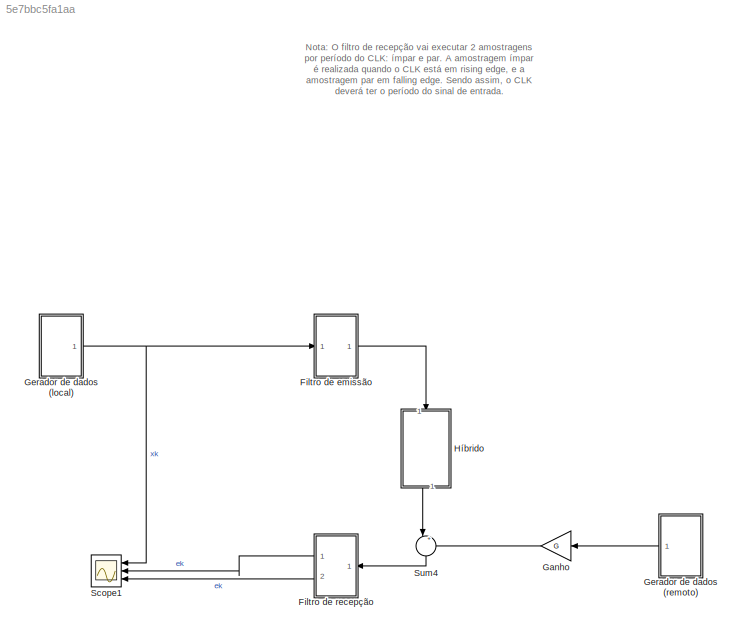
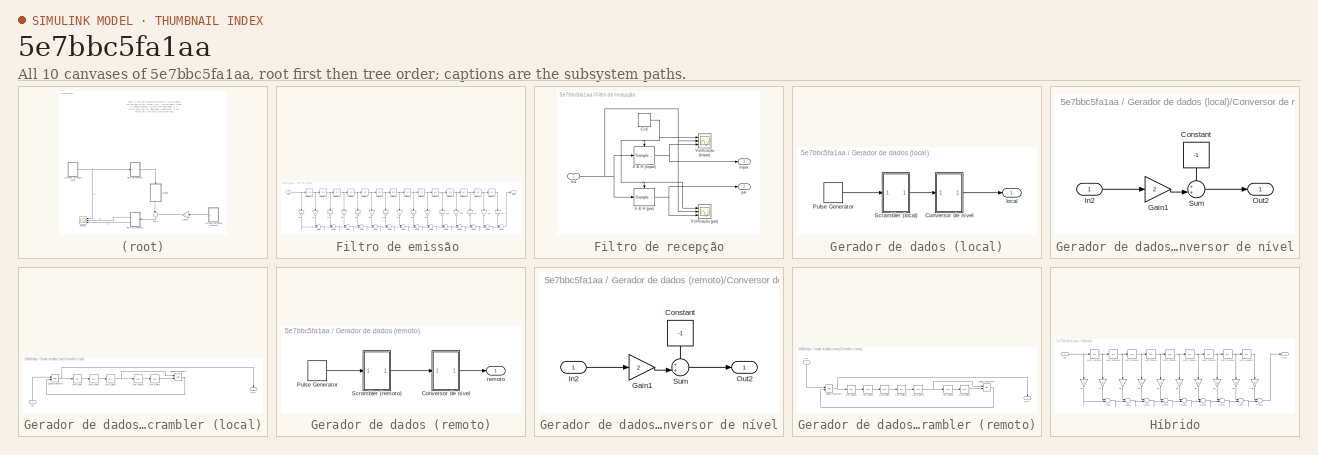
[diagram: thumbnail index - all 10 canvases of the model, root first then tree order]
MODEL slx_5e7bbc5fa1aa
KIND model
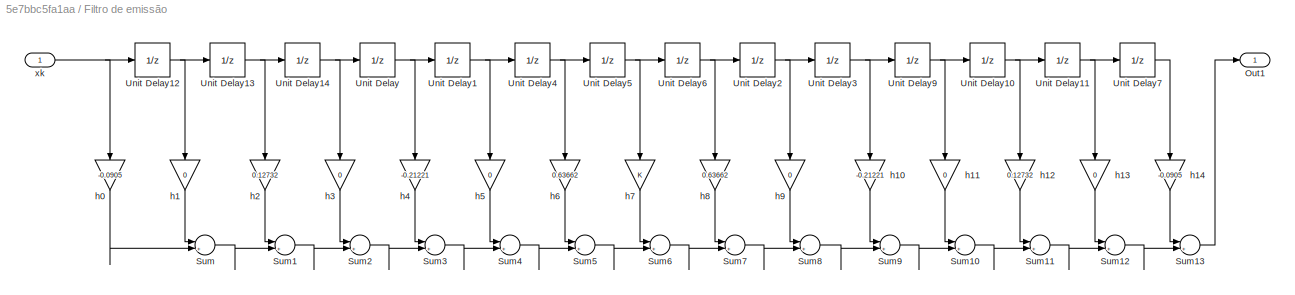
BLOCK [SubSystem] Filtro de emissão 
  FunctionWithSeparateData = off
  MaskHideContents = off
  MinAlgLoopOccurrences = off
  Opaque = off
  Ports = [1, 1]
  PropExecContextOutsideSubsystem = off
  RTWSystemCode = Auto
  RequestExecContextInheritance = off
BLOCK [Outport] Filtro de emissão /Out1
  IconDisplay = Port number
BLOCK [Sum] Filtro de emissão /Sum
  IconShape = round
  InputSameDT = off
  Inputs = |++
  OutDataTypeStr = Inherit: Inherit via internal rule
  Ports = [2, 1]
  SaturateOnIntegerOverflow = off
BLOCK [Sum] Filtro de emissão /Sum1
  IconShape = round
  InputSameDT = off
  Inputs = |++
  OutDataTypeStr = Inherit: Inherit via internal rule
  Ports = [2, 1]
  SaturateOnIntegerOverflow = off
BLOCK [Sum] Filtro de emissão /Sum10
  IconShape = round
  InputSameDT = off
  Inputs = |++
  OutDataTypeStr = Inherit: Inherit via internal rule
  Ports = [2, 1]
  SaturateOnIntegerOverflow = off
BLOCK [Sum] Filtro de emissão /Sum11
  IconShape = round
  InputSameDT = off
  Inputs = |++
  OutDataTypeStr = Inherit: Inherit via internal rule
  Ports = [2, 1]
  SaturateOnIntegerOverflow = off
BLOCK [Sum] Filtro de emissão /Sum12
  IconShape = round
  InputSameDT = off
  Inputs = |++
  OutDataTypeStr = Inherit: Inherit via internal rule
  Ports = [2, 1]
  SaturateOnIntegerOverflow = off
BLOCK [Sum] Filtro de emissão /Sum13
  IconShape = round
  InputSameDT = off
  Inputs = |++
  OutDataTypeStr = Inherit: Inherit via internal rule
  Ports = [2, 1]
  SaturateOnIntegerOverflow = off
BLOCK [Sum] Filtro de emissão /Sum2
  IconShape = round
  InputSameDT = off
  Inputs = |++
  OutDataTypeStr = Inherit: Inherit via internal rule
  Ports = [2, 1]
  SaturateOnIntegerOverflow = off
BLOCK [Sum] Filtro de emissão /Sum3
  IconShape = round
  InputSameDT = off
  Inputs = |++
  OutDataTypeStr = Inherit: Inherit via internal rule
  Ports = [2, 1]
  SaturateOnIntegerOverflow = off
BLOCK [Sum] Filtro de emissão /Sum4
  IconShape = round
  InputSameDT = off
  Inputs = |++
  OutDataTypeStr = Inherit: Inherit via internal rule
  Ports = [2, 1]
  SaturateOnIntegerOverflow = off
BLOCK [Sum] Filtro de emissão /Sum5
  IconShape = round
  InputSameDT = off
  Inputs = |++
  OutDataTypeStr = Inherit: Inherit via internal rule
  Ports = [2, 1]
  SaturateOnIntegerOverflow = off
BLOCK [Sum] Filtro de emissão /Sum6
  IconShape = round
  InputSameDT = off
  Inputs = |++
  OutDataTypeStr = Inherit: Inherit via internal rule
  Ports = [2, 1]
  SaturateOnIntegerOverflow = off
BLOCK [Sum] Filtro de emissão /Sum7
  IconShape = round
  InputSameDT = off
  Inputs = |++
  OutDataTypeStr = Inherit: Inherit via internal rule
  Ports = [2, 1]
  SaturateOnIntegerOverflow = off
BLOCK [Sum] Filtro de emissão /Sum8
  IconShape = round
  InputSameDT = off
  Inputs = |++
  OutDataTypeStr = Inherit: Inherit via internal rule
  Ports = [2, 1]
  SaturateOnIntegerOverflow = off
BLOCK [Sum] Filtro de emissão /Sum9
  IconShape = round
  InputSameDT = off
  Inputs = |++
  OutDataTypeStr = Inherit: Inherit via internal rule
  Ports = [2, 1]
  SaturateOnIntegerOverflow = off
BLOCK [UnitDelay] Filtro de emissão /Unit Delay
  InputProcessing = Elements as channels (sample based)
  SampleTime = -1
BLOCK [UnitDelay] Filtro de emissão /Unit Delay1
  InputProcessing = Elements as channels (sample based)
  SampleTime = -1
BLOCK [UnitDelay] Filtro de emissão /Unit Delay10
  InputProcessing = Elements as channels (sample based)
  SampleTime = -1
BLOCK [UnitDelay] Filtro de emissão /Unit Delay11
  InputProcessing = Elements as channels (sample based)
  SampleTime = -1
BLOCK [UnitDelay] Filtro de emissão /Unit Delay12
  InputProcessing = Elements as channels (sample based)
  SampleTime = -1
BLOCK [UnitDelay] Filtro de emissão /Unit Delay13
  InputProcessing = Elements as channels (sample based)
  SampleTime = -1
BLOCK [UnitDelay] Filtro de emissão /Unit Delay14
  InputProcessing = Elements as channels (sample based)
  SampleTime = -1
BLOCK [UnitDelay] Filtro de emissão /Unit Delay2
  InputProcessing = Elements as channels (sample based)
  SampleTime = -1
BLOCK [UnitDelay] Filtro de emissão /Unit Delay3
  InputProcessing = Elements as channels (sample based)
  SampleTime = -1
BLOCK [UnitDelay] Filtro de emissão /Unit Delay4
  InputProcessing = Elements as channels (sample based)
  SampleTime = -1
BLOCK [UnitDelay] Filtro de emissão /Unit Delay5
  InputProcessing = Elements as channels (sample based)
  SampleTime = -1
BLOCK [UnitDelay] Filtro de emissão /Unit Delay6
  InputProcessing = Elements as channels (sample based)
  SampleTime = -1
BLOCK [UnitDelay] Filtro de emissão /Unit Delay7
  InputProcessing = Elements as channels (sample based)
  SampleTime = -1
BLOCK [UnitDelay] Filtro de emissão /Unit Delay9
  InputProcessing = Elements as channels (sample based)
  SampleTime = -1
BLOCK [Gain] Filtro de emissão /h0
  Gain = -0.0905
  OutDataTypeStr = Inherit: Inherit via internal rule
  ParamDataTypeStr = Inherit: Inherit via internal rule
  SaturateOnIntegerOverflow = off
BLOCK [Gain] Filtro de emissão /h1
  Gain = 0
  OutDataTypeStr = Inherit: Inherit via internal rule
  ParamDataTypeStr = Inherit: Inherit via internal rule
  SaturateOnIntegerOverflow = off
BLOCK [Gain] Filtro de emissão /h10
  Gain = -0.21221
  OutDataTypeStr = Inherit: Inherit via internal rule
  ParamDataTypeStr = Inherit: Inherit via internal rule
  SaturateOnIntegerOverflow = off
BLOCK [Gain] Filtro de emissão /h11
  Gain = 0
  OutDataTypeStr = Inherit: Inherit via internal rule
  ParamDataTypeStr = Inherit: Inherit via internal rule
  SaturateOnIntegerOverflow = off
BLOCK [Gain] Filtro de emissão /h12
  Gain = 0.12732
  OutDataTypeStr = Inherit: Inherit via internal rule
  ParamDataTypeStr = Inherit: Inherit via internal rule
  SaturateOnIntegerOverflow = off
BLOCK [Gain] Filtro de emissão /h13
  Gain = 0
  OutDataTypeStr = Inherit: Inherit via internal rule
  ParamDataTypeStr = Inherit: Inherit via internal rule
  SaturateOnIntegerOverflow = off
BLOCK [Gain] Filtro de emissão /h14
  Gain = -0.0905
  OutDataTypeStr = Inherit: Inherit via internal rule
  ParamDataTypeStr = Inherit: Inherit via internal rule
  SaturateOnIntegerOverflow = off
BLOCK [Gain] Filtro de emissão /h2
  Gain = 0.12732
  OutDataTypeStr = Inherit: Inherit via internal rule
  ParamDataTypeStr = Inherit: Inherit via internal rule
  SaturateOnIntegerOverflow = off
BLOCK [Gain] Filtro de emissão /h3
  Gain = 0
  OutDataTypeStr = Inherit: Inherit via internal rule
  ParamDataTypeStr = Inherit: Inherit via internal rule
  SaturateOnIntegerOverflow = off
BLOCK [Gain] Filtro de emissão /h4
  Gain = -0.21221
  OutDataTypeStr = Inherit: Inherit via internal rule
  ParamDataTypeStr = Inherit: Inherit via internal rule
  SaturateOnIntegerOverflow = off
BLOCK [Gain] Filtro de emissão /h5
  Gain = 0
  OutDataTypeStr = Inherit: Inherit via internal rule
  ParamDataTypeStr = Inherit: Inherit via internal rule
  SaturateOnIntegerOverflow = off
BLOCK [Gain] Filtro de emissão /h6
  Gain = 0.63662
  OutDataTypeStr = Inherit: Inherit via internal rule
  ParamDataTypeStr = Inherit: Inherit via internal rule
  SaturateOnIntegerOverflow = off
BLOCK [Gain] Filtro de emissão /h7
  OutDataTypeStr = Inherit: Inherit via internal rule
  ParamDataTypeStr = Inherit: Inherit via internal rule
  SaturateOnIntegerOverflow = off
BLOCK [Gain] Filtro de emissão /h8
  Gain = 0.63662
  OutDataTypeStr = Inherit: Inherit via internal rule
  ParamDataTypeStr = Inherit: Inherit via internal rule
  SaturateOnIntegerOverflow = off
BLOCK [Gain] Filtro de emissão /h9
  Gain = 0
  OutDataTypeStr = Inherit: Inherit via internal rule
  ParamDataTypeStr = Inherit: Inherit via internal rule
  SaturateOnIntegerOverflow = off
BLOCK [Inport] Filtro de emissão /xk
  IconDisplay = Port number
BLOCK [SubSystem] Filtro de recepção
  FunctionWithSeparateData = off
  MaskHideContents = off
  MinAlgLoopOccurrences = off
  Opaque = off
  Ports = [1, 2]
  PropExecContextOutsideSubsystem = off
  RTWSystemCode = Auto
  RequestExecContextInheritance = off
BLOCK [DiscretePulseGenerator] Filtro de recepção/CLK
  Period = 2*T
  Ports = [0, 1]
  PulseType = Time based
  PulseWidth = 50
  SampleTime = St
BLOCK [Inport] Filtro de recepção/In1
  IconDisplay = Port number
BLOCK [Reference] Filtro de recepção/S & H (par)   REF=dspsigops/Sample
and Hold
  Ports = [1, 1, 0, 1]
  SourceBlock = dspsigops/Sample\nand Hold
  SourceType = Sample and Hold
  initCond = 0
  latchinput = off
  trig = Falling edge
BLOCK [Reference] Filtro de recepção/S & H (ímpar)   REF=dspsigops/Sample
and Hold
  Ports = [1, 1, 0, 1]
  SourceBlock = dspsigops/Sample\nand Hold
  SourceType = Sample and Hold
  initCond = 0
  latchinput = off
  trig = Rising edge
BLOCK [Scope] Filtro de recepção/Verificação (par)
  DataFormat = StructureWithTime
  Floating = off
  NumInputPorts = 3
  Ports = [3]
  SampleTime = 0
  ShowLegends = off
  YMax = 5~5~5
  YMin = -5~-5~-5
BLOCK [Scope] Filtro de recepção/Verificação (ímpar)
  DataFormat = StructureWithTime
  Floating = off
  NumInputPorts = 3
  Ports = [3]
  SampleTime = 0
  SaveName = ScopeData1
  ShowLegends = off
  YMax = 5~5~5
  YMin = -5~-5~-5
BLOCK [Outport] Filtro de recepção/par
  IconDisplay = Port number
  Port = 2
BLOCK [Outport] Filtro de recepção/ímpar
  IconDisplay = Port number
BLOCK [Gain] Ganho
  Gain = G
  OutDataTypeStr = Inherit: Inherit via internal rule
  ParamDataTypeStr = Inherit: Inherit via internal rule
  SaturateOnIntegerOverflow = off
BLOCK [SubSystem] Gerador de dados (local)
  FunctionWithSeparateData = off
  MaskHideContents = off
  MinAlgLoopOccurrences = off
  Opaque = off
  Ports = [0, 1]
  PropExecContextOutsideSubsystem = off
  RTWSystemCode = Auto
  RequestExecContextInheritance = off
BLOCK [SubSystem] Gerador de dados (local)/Conversor de nível
  FunctionWithSeparateData = off
  MaskHideContents = off
  MinAlgLoopOccurrences = off
  Opaque = off
  Ports = [1, 1]
  PropExecContextOutsideSubsystem = off
  RTWSystemCode = Auto
  RequestExecContextInheritance = off
BLOCK [Constant] Gerador de dados (local)/Conversor de nível/Constant
  Value = -1
BLOCK [Gain] Gerador de dados (local)/Conversor de nível/Gain1
  Gain = 2
  OutDataTypeStr = Inherit: Inherit via internal rule
  ParamDataTypeStr = Inherit: Inherit via internal rule
  SaturateOnIntegerOverflow = off
BLOCK [Inport] Gerador de dados (local)/Conversor de nível/In2
  IconDisplay = Port number
BLOCK [Outport] Gerador de dados (local)/Conversor de nível/Out2
  IconDisplay = Port number
BLOCK [Sum] Gerador de dados (local)/Conversor de nível/Sum
  IconShape = round
  InputSameDT = off
  Inputs = ++|
  OutDataTypeStr = Inherit: Inherit via internal rule
  Ports = [2, 1]
  SaturateOnIntegerOverflow = off
BLOCK [DiscretePulseGenerator] Gerador de dados (local)/Pulse Generator
  Period = 2*T
  Ports = [0, 1]
  PulseType = Time based
  PulseWidth = 50
  SampleTime = St
BLOCK [SubSystem] Gerador de dados (local)/Scrambler (local)
  FunctionWithSeparateData = off
  MaskHideContents = off
  MinAlgLoopOccurrences = off
  Opaque = off
  Ports = [1, 1]
  PropExecContextOutsideSubsystem = off
  RTWSystemCode = Auto
  RequestExecContextInheritance = off
BLOCK [Inport] Gerador de dados (local)/Scrambler (local)/In1
  IconDisplay = Port number
BLOCK [Logic] Gerador de dados (local)/Scrambler (local)/Logical Operator
  AllPortsSameDT = off
  Operator = XOR
  OutDataTypeStr = fixdt(1,16)
  Ports = [2, 1]
BLOCK [Logic] Gerador de dados (local)/Scrambler (local)/Logical Operator1
  AllPortsSameDT = off
  Operator = XOR
  OutDataTypeStr = boolean
  Ports = [2, 1]
BLOCK [Outport] Gerador de dados (local)/Scrambler (local)/Out1
  IconDisplay = Port number
BLOCK [UnitDelay] Gerador de dados (local)/Scrambler (local)/Unit Delay
  InputProcessing = Elements as channels (sample based)
  SampleTime = -1
BLOCK [UnitDelay] Gerador de dados (local)/Scrambler (local)/Unit Delay1
  InputProcessing = Elements as channels (sample based)
  SampleTime = -1
BLOCK [UnitDelay] Gerador de dados (local)/Scrambler (local)/Unit Delay2
  InputProcessing = Elements as channels (sample based)
  SampleTime = -1
BLOCK [UnitDelay] Gerador de dados (local)/Scrambler (local)/Unit Delay3
  InputProcessing = Elements as channels (sample based)
  SampleTime = -1
BLOCK [UnitDelay] Gerador de dados (local)/Scrambler (local)/Unit Delay4
  InputProcessing = Elements as channels (sample based)
  SampleTime = -1
BLOCK [Outport] Gerador de dados (local)/local
  IconDisplay = Port number
BLOCK [SubSystem] Gerador de dados (remoto)
  FunctionWithSeparateData = off
  MaskHideContents = off
  MinAlgLoopOccurrences = off
  Opaque = off
  Ports = [0, 1]
  PropExecContextOutsideSubsystem = off
  RTWSystemCode = Auto
  RequestExecContextInheritance = off
BLOCK [SubSystem] Gerador de dados (remoto)/Conversor de nível
  FunctionWithSeparateData = off
  MaskHideContents = off
  MinAlgLoopOccurrences = off
  Opaque = off
  Ports = [1, 1]
  PropExecContextOutsideSubsystem = off
  RTWSystemCode = Auto
  RequestExecContextInheritance = off
BLOCK [Constant] Gerador de dados (remoto)/Conversor de nível/Constant
  Value = -1
BLOCK [Gain] Gerador de dados (remoto)/Conversor de nível/Gain1
  Gain = 2
  OutDataTypeStr = Inherit: Inherit via internal rule
  ParamDataTypeStr = Inherit: Inherit via internal rule
  SaturateOnIntegerOverflow = off
BLOCK [Inport] Gerador de dados (remoto)/Conversor de nível/In2
  IconDisplay = Port number
BLOCK [Outport] Gerador de dados (remoto)/Conversor de nível/Out2
  IconDisplay = Port number
BLOCK [Sum] Gerador de dados (remoto)/Conversor de nível/Sum
  IconShape = round
  InputSameDT = off
  Inputs = ++|
  OutDataTypeStr = Inherit: Inherit via internal rule
  Ports = [2, 1]
  SaturateOnIntegerOverflow = off
BLOCK [DiscretePulseGenerator] Gerador de dados (remoto)/Pulse Generator
  Period = 2*T
  Ports = [0, 1]
  PulseType = Time based
  PulseWidth = 50
  SampleTime = St
BLOCK [SubSystem] Gerador de dados (remoto)/Scrambler (remoto)
  FunctionWithSeparateData = off
  MaskHideContents = off
  MinAlgLoopOccurrences = off
  Opaque = off
  Ports = [1, 1]
  PropExecContextOutsideSubsystem = off
  RTWSystemCode = Auto
  RequestExecContextInheritance = off
BLOCK [Inport] Gerador de dados (remoto)/Scrambler (remoto)/In1
  IconDisplay = Port number
BLOCK [Logic] Gerador de dados (remoto)/Scrambler (remoto)/Logical Operator2
  AllPortsSameDT = off
  Operator = XOR
  OutDataTypeStr = fixdt(1,16)
  Ports = [2, 1]
BLOCK [Logic] Gerador de dados (remoto)/Scrambler (remoto)/Logical Operator3
  AllPortsSameDT = off
  Operator = XOR
  OutDataTypeStr = boolean
  Ports = [2, 1]
BLOCK [Outport] Gerador de dados (remoto)/Scrambler (remoto)/Out1
  IconDisplay = Port number
BLOCK [UnitDelay] Gerador de dados (remoto)/Scrambler (remoto)/Unit Delay10
  InputProcessing = Elements as channels (sample based)
  SampleTime = -1
BLOCK [UnitDelay] Gerador de dados (remoto)/Scrambler (remoto)/Unit Delay11
  InputProcessing = Elements as channels (sample based)
  SampleTime = -1
BLOCK [UnitDelay] Gerador de dados (remoto)/Scrambler (remoto)/Unit Delay5
  InputProcessing = Elements as channels (sample based)
  SampleTime = -1
BLOCK [UnitDelay] Gerador de dados (remoto)/Scrambler (remoto)/Unit Delay6
  InputProcessing = Elements as channels (sample based)
  SampleTime = -1
BLOCK [UnitDelay] Gerador de dados (remoto)/Scrambler (remoto)/Unit Delay7
  InputProcessing = Elements as channels (sample based)
  SampleTime = -1
BLOCK [UnitDelay] Gerador de dados (remoto)/Scrambler (remoto)/Unit Delay8
  InputProcessing = Elements as channels (sample based)
  SampleTime = -1
BLOCK [UnitDelay] Gerador de dados (remoto)/Scrambler (remoto)/Unit Delay9
  InputProcessing = Elements as channels (sample based)
  SampleTime = -1
BLOCK [Outport] Gerador de dados (remoto)/remoto
  IconDisplay = Port number
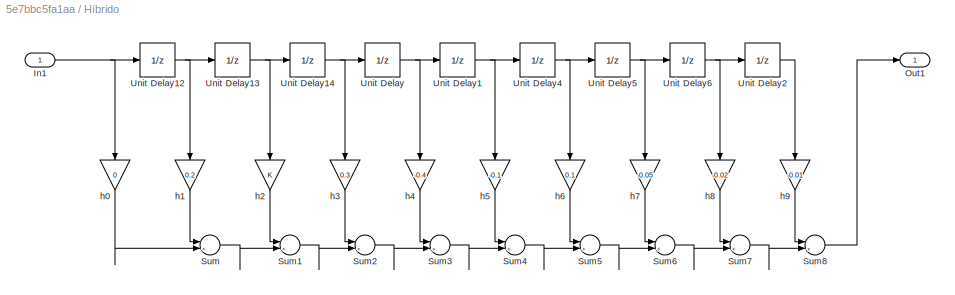
BLOCK [SubSystem] Híbrido
  FunctionWithSeparateData = off
  MaskHideContents = off
  MinAlgLoopOccurrences = off
  Opaque = off
  Ports = [1, 1]
  PropExecContextOutsideSubsystem = off
  RTWSystemCode = Auto
  RequestExecContextInheritance = off
BLOCK [Inport] Híbrido/In1
  IconDisplay = Port number
BLOCK [Outport] Híbrido/Out1
  IconDisplay = Port number
BLOCK [Sum] Híbrido/Sum
  IconShape = round
  InputSameDT = off
  Inputs = |++
  OutDataTypeStr = Inherit: Inherit via internal rule
  Ports = [2, 1]
  SaturateOnIntegerOverflow = off
BLOCK [Sum] Híbrido/Sum1
  IconShape = round
  InputSameDT = off
  Inputs = |++
  OutDataTypeStr = Inherit: Inherit via internal rule
  Ports = [2, 1]
  SaturateOnIntegerOverflow = off
BLOCK [Sum] Híbrido/Sum2
  IconShape = round
  InputSameDT = off
  Inputs = |++
  OutDataTypeStr = Inherit: Inherit via internal rule
  Ports = [2, 1]
  SaturateOnIntegerOverflow = off
BLOCK [Sum] Híbrido/Sum3
  IconShape = round
  InputSameDT = off
  Inputs = |++
  OutDataTypeStr = Inherit: Inherit via internal rule
  Ports = [2, 1]
  SaturateOnIntegerOverflow = off
BLOCK [Sum] Híbrido/Sum4
  IconShape = round
  InputSameDT = off
  Inputs = |++
  OutDataTypeStr = Inherit: Inherit via internal rule
  Ports = [2, 1]
  SaturateOnIntegerOverflow = off
BLOCK [Sum] Híbrido/Sum5
  IconShape = round
  InputSameDT = off
  Inputs = |++
  OutDataTypeStr = Inherit: Inherit via internal rule
  Ports = [2, 1]
  SaturateOnIntegerOverflow = off
BLOCK [Sum] Híbrido/Sum6
  IconShape = round
  InputSameDT = off
  Inputs = |++
  OutDataTypeStr = Inherit: Inherit via internal rule
  Ports = [2, 1]
  SaturateOnIntegerOverflow = off
BLOCK [Sum] Híbrido/Sum7
  IconShape = round
  InputSameDT = off
  Inputs = |++
  OutDataTypeStr = Inherit: Inherit via internal rule
  Ports = [2, 1]
  SaturateOnIntegerOverflow = off
BLOCK [Sum] Híbrido/Sum8
  IconShape = round
  InputSameDT = off
  Inputs = |++
  OutDataTypeStr = Inherit: Inherit via internal rule
  Ports = [2, 1]
  SaturateOnIntegerOverflow = off
BLOCK [UnitDelay] Híbrido/Unit Delay
  InputProcessing = Elements as channels (sample based)
  SampleTime = -1
BLOCK [UnitDelay] Híbrido/Unit Delay1
  InputProcessing = Elements as channels (sample based)
  SampleTime = -1
BLOCK [UnitDelay] Híbrido/Unit Delay12
  InputProcessing = Elements as channels (sample based)
  SampleTime = -1
BLOCK [UnitDelay] Híbrido/Unit Delay13
  InputProcessing = Elements as channels (sample based)
  SampleTime = -1
BLOCK [UnitDelay] Híbrido/Unit Delay14
  InputProcessing = Elements as channels (sample based)
  SampleTime = -1
BLOCK [UnitDelay] Híbrido/Unit Delay2
  InputProcessing = Elements as channels (sample based)
  SampleTime = -1
BLOCK [UnitDelay] Híbrido/Unit Delay4
  InputProcessing = Elements as channels (sample based)
  SampleTime = -1
BLOCK [UnitDelay] Híbrido/Unit Delay5
  InputProcessing = Elements as channels (sample based)
  SampleTime = -1
BLOCK [UnitDelay] Híbrido/Unit Delay6
  InputProcessing = Elements as channels (sample based)
  SampleTime = -1
BLOCK [Gain] Híbrido/h0
  Gain = 0
  OutDataTypeStr = Inherit: Inherit via internal rule
  ParamDataTypeStr = Inherit: Inherit via internal rule
  SaturateOnIntegerOverflow = off
BLOCK [Gain] Híbrido/h1
  Gain = 0.2
  OutDataTypeStr = Inherit: Inherit via internal rule
  ParamDataTypeStr = Inherit: Inherit via internal rule
  SaturateOnIntegerOverflow = off
BLOCK [Gain] Híbrido/h2
  OutDataTypeStr = Inherit: Inherit via internal rule
  ParamDataTypeStr = Inherit: Inherit via internal rule
  SaturateOnIntegerOverflow = off
BLOCK [Gain] Híbrido/h3
  Gain = 0.3
  OutDataTypeStr = Inherit: Inherit via internal rule
  ParamDataTypeStr = Inherit: Inherit via internal rule
  SaturateOnIntegerOverflow = off
BLOCK [Gain] Híbrido/h4
  Gain = -0.4
  OutDataTypeStr = Inherit: Inherit via internal rule
  ParamDataTypeStr = Inherit: Inherit via internal rule
  SaturateOnIntegerOverflow = off
BLOCK [Gain] Híbrido/h5
  Gain = -0.1
  OutDataTypeStr = Inherit: Inherit via internal rule
  ParamDataTypeStr = Inherit: Inherit via internal rule
  SaturateOnIntegerOverflow = off
BLOCK [Gain] Híbrido/h6
  Gain = 0.1
  OutDataTypeStr = Inherit: Inherit via internal rule
  ParamDataTypeStr = Inherit: Inherit via internal rule
  SaturateOnIntegerOverflow = off
BLOCK [Gain] Híbrido/h7
  Gain = -0.05
  OutDataTypeStr = Inherit: Inherit via internal rule
  ParamDataTypeStr = Inherit: Inherit via internal rule
  SaturateOnIntegerOverflow = off
BLOCK [Gain] Híbrido/h8
  Gain = -0.02
  OutDataTypeStr = Inherit: Inherit via internal rule
  ParamDataTypeStr = Inherit: Inherit via internal rule
  SaturateOnIntegerOverflow = off
BLOCK [Gain] Híbrido/h9
  Gain = -0.01
  OutDataTypeStr = Inherit: Inherit via internal rule
  ParamDataTypeStr = Inherit: Inherit via internal rule
  SaturateOnIntegerOverflow = off
BLOCK [Scope] Scope1
  DataFormat = StructureWithTime
  Floating = off
  NumInputPorts = 3
  Ports = [3]
  SampleTime = 0
  SaveName = ScopeData3
  ShowLegends = off
  YMax = 5~5~5
  YMin = -5~-5~-5
BLOCK [Sum] Sum4
  IconShape = round
  InputSameDT = off
  Inputs = |++
  OutDataTypeStr = Inherit: Inherit via internal rule
  Ports = [2, 1]
  SaturateOnIntegerOverflow = off
ANNOTATION (root): Nota: O filtro de recepção vai executar 2 amostragens por período do CLK: ímpar e par. A amostragem ímpar é realizada quando o CLK está em rising edge, e a amostragem par em falling edge. Sendo assim, o CLK deverá ter o período do sinal de entrada.
LINE Filtro de emissão /Sum10:1 -> Filtro de emissão /Sum11:2
LINE Filtro de emissão /Sum11:1 -> Filtro de emissão /Sum12:2
LINE Filtro de emissão /Sum12:1 -> Filtro de emissão /Sum13:2
LINE Filtro de emissão /Sum13:1 -> Filtro de emissão /Out1:1
LINE Filtro de emissão /Sum1:1 -> Filtro de emissão /Sum2:2
LINE Filtro de emissão /Sum2:1 -> Filtro de emissão /Sum3:2
LINE Filtro de emissão /Sum3:1 -> Filtro de emissão /Sum4:2
LINE Filtro de emissão /Sum4:1 -> Filtro de emissão /Sum5:2
LINE Filtro de emissão /Sum5:1 -> Filtro de emissão /Sum6:2
LINE Filtro de emissão /Sum6:1 -> Filtro de emissão /Sum7:2
LINE Filtro de emissão /Sum7:1 -> Filtro de emissão /Sum8:2
LINE Filtro de emissão /Sum8:1 -> Filtro de emissão /Sum9:2
LINE Filtro de emissão /Sum9:1 -> Filtro de emissão /Sum10:2
LINE Filtro de emissão /Sum:1 -> Filtro de emissão /Sum1:2
NET Filtro de emissão /Unit Delay10:1 -> Filtro de emissão /Unit Delay11:1, Filtro de emissão /h12:1
NET Filtro de emissão /Unit Delay11:1 -> Filtro de emissão /Unit Delay7:1, Filtro de emissão /h13:1
NET Filtro de emissão /Unit Delay12:1 -> Filtro de emissão /Unit Delay13:1, Filtro de emissão /h1:1
NET Filtro de emissão /Unit Delay13:1 -> Filtro de emissão /Unit Delay14:1, Filtro de emissão /h2:1
NET Filtro de emissão /Unit Delay14:1 -> Filtro de emissão /Unit Delay:1, Filtro de emissão /h3:1
NET Filtro de emissão /Unit Delay1:1 -> Filtro de emissão /Unit Delay4:1, Filtro de emissão /h5:1
NET Filtro de emissão /Unit Delay2:1 -> Filtro de emissão /Unit Delay3:1, Filtro de emissão /h9:1
NET Filtro de emissão /Unit Delay3:1 -> Filtro de emissão /Unit Delay9:1, Filtro de emissão /h10:1
NET Filtro de emissão /Unit Delay4:1 -> Filtro de emissão /Unit Delay5:1, Filtro de emissão /h6:1
NET Filtro de emissão /Unit Delay5:1 -> Filtro de emissão /Unit Delay6:1, Filtro de emissão /h7:1
NET Filtro de emissão /Unit Delay6:1 -> Filtro de emissão /Unit Delay2:1, Filtro de emissão /h8:1
LINE Filtro de emissão /Unit Delay7:1 -> Filtro de emissão /h14:1
NET Filtro de emissão /Unit Delay9:1 -> Filtro de emissão /Unit Delay10:1, Filtro de emissão /h11:1
NET Filtro de emissão /Unit Delay:1 -> Filtro de emissão /Unit Delay1:1, Filtro de emissão /h4:1
LINE Filtro de emissão /h0:1 -> Filtro de emissão /Sum:2
LINE Filtro de emissão /h10:1 -> Filtro de emissão /Sum9:1
LINE Filtro de emissão /h11:1 -> Filtro de emissão /Sum10:1
LINE Filtro de emissão /h12:1 -> Filtro de emissão /Sum11:1
LINE Filtro de emissão /h13:1 -> Filtro de emissão /Sum12:1
LINE Filtro de emissão /h14:1 -> Filtro de emissão /Sum13:1
LINE Filtro de emissão /h1:1 -> Filtro de emissão /Sum:1
LINE Filtro de emissão /h2:1 -> Filtro de emissão /Sum1:1
LINE Filtro de emissão /h3:1 -> Filtro de emissão /Sum2:1
LINE Filtro de emissão /h4:1 -> Filtro de emissão /Sum3:1
LINE Filtro de emissão /h5:1 -> Filtro de emissão /Sum4:1
LINE Filtro de emissão /h6:1 -> Filtro de emissão /Sum5:1
LINE Filtro de emissão /h7:1 -> Filtro de emissão /Sum6:1
LINE Filtro de emissão /h8:1 -> Filtro de emissão /Sum7:1
LINE Filtro de emissão /h9:1 -> Filtro de emissão /Sum8:1
NET Filtro de emissão /xk:1 -> Filtro de emissão /Unit Delay12:1, Filtro de emissão /h0:1
LINE Filtro de emissão :1 -> Híbrido:1
NET Filtro de recepção/CLK:1 -> Filtro de recepção/S & H (par) :trigger, Filtro de recepção/S & H (ímpar) :trigger, Filtro de recepção/Verificação (par):1, Filtro de recepção/Verificação (ímpar):1
NET Filtro de recepção/In1:1 -> Filtro de recepção/S & H (par) :1, Filtro de recepção/S & H (ímpar) :1, Filtro de recepção/Verificação (par):2, Filtro de recepção/Verificação (ímpar):2
NET Filtro de recepção/S & H (par) :1 -> Filtro de recepção/Verificação (par):3, Filtro de recepção/par:1
NET Filtro de recepção/S & H (ímpar) :1 -> Filtro de recepção/Verificação (ímpar):3, Filtro de recepção/ímpar:1
LINE Filtro de recepção:1 -> Scope1:2
LINE Filtro de recepção:2 -> Scope1:3
LINE Ganho:1 -> Sum4:2
LINE Gerador de dados (local)/Conversor de nível/Constant:1 -> Gerador de dados (local)/Conversor de nível/Sum:1
LINE Gerador de dados (local)/Conversor de nível/Gain1:1 -> Gerador de dados (local)/Conversor de nível/Sum:2
LINE Gerador de dados (local)/Conversor de nível/In2:1 -> Gerador de dados (local)/Conversor de nível/Gain1:1
LINE Gerador de dados (local)/Conversor de nível/Sum:1 -> Gerador de dados (local)/Conversor de nível/Out2:1
LINE Gerador de dados (local)/Conversor de nível:1 -> Gerador de dados (local)/local:1
LINE Gerador de dados (local)/Pulse Generator:1 -> Gerador de dados (local)/Scrambler (local):1
LINE Gerador de dados (local)/Scrambler (local)/In1:1 -> Gerador de dados (local)/Scrambler (local)/Logical Operator:1
LINE Gerador de dados (local)/Scrambler (local)/Logical Operator1:1 -> Gerador de dados (local)/Scrambler (local)/Logical Operator:2
NET Gerador de dados (local)/Scrambler (local)/Logical Operator:1 -> Gerador de dados (local)/Scrambler (local)/Out1:1, Gerador de dados (local)/Scrambler (local)/Unit Delay:1
LINE Gerador de dados (local)/Scrambler (local)/Unit Delay1:1 -> Gerador de dados (local)/Scrambler (local)/Unit Delay2:1
NET Gerador de dados (local)/Scrambler (local)/Unit Delay2:1 -> Gerador de dados (local)/Scrambler (local)/Logical Operator1:1, Gerador de dados (local)/Scrambler (local)/Unit Delay3:1
LINE Gerador de dados (local)/Scrambler (local)/Unit Delay3:1 -> Gerador de dados (local)/Scrambler (local)/Unit Delay4:1
LINE Gerador de dados (local)/Scrambler (local)/Unit Delay4:1 -> Gerador de dados (local)/Scrambler (local)/Logical Operator1:2
LINE Gerador de dados (local)/Scrambler (local)/Unit Delay:1 -> Gerador de dados (local)/Scrambler (local)/Unit Delay1:1
LINE Gerador de dados (local)/Scrambler (local):1 -> Gerador de dados (local)/Conversor de nível:1
NET Gerador de dados (local):1 -> Filtro de emissão :1, Scope1:1
LINE Gerador de dados (remoto)/Conversor de nível/Constant:1 -> Gerador de dados (remoto)/Conversor de nível/Sum:1
LINE Gerador de dados (remoto)/Conversor de nível/Gain1:1 -> Gerador de dados (remoto)/Conversor de nível/Sum:2
LINE Gerador de dados (remoto)/Conversor de nível/In2:1 -> Gerador de dados (remoto)/Conversor de nível/Gain1:1
LINE Gerador de dados (remoto)/Conversor de nível/Sum:1 -> Gerador de dados (remoto)/Conversor de nível/Out2:1
LINE Gerador de dados (remoto)/Conversor de nível:1 -> Gerador de dados (remoto)/remoto:1
LINE Gerador de dados (remoto)/Pulse Generator:1 -> Gerador de dados (remoto)/Scrambler (remoto):1
LINE Gerador de dados (remoto)/Scrambler (remoto)/In1:1 -> Gerador de dados (remoto)/Scrambler (remoto)/Logical Operator2:1
NET Gerador de dados (remoto)/Scrambler (remoto)/Logical Operator2:1 -> Gerador de dados (remoto)/Scrambler (remoto)/Out1:1, Gerador de dados (remoto)/Scrambler (remoto)/Unit Delay5:1
LINE Gerador de dados (remoto)/Scrambler (remoto)/Logical Operator3:1 -> Gerador de dados (remoto)/Scrambler (remoto)/Logical Operator2:2
NET Gerador de dados (remoto)/Scrambler (remoto)/Unit Delay10:1 -> Gerador de dados (remoto)/Scrambler (remoto)/Logical Operator3:1, Gerador de dados (remoto)/Scrambler (remoto)/Unit Delay8:1
LINE Gerador de dados (remoto)/Scrambler (remoto)/Unit Delay11:1 -> Gerador de dados (remoto)/Scrambler (remoto)/Unit Delay10:1
LINE Gerador de dados (remoto)/Scrambler (remoto)/Unit Delay5:1 -> Gerador de dados (remoto)/Scrambler (remoto)/Unit Delay6:1
LINE Gerador de dados (remoto)/Scrambler (remoto)/Unit Delay6:1 -> Gerador de dados (remoto)/Scrambler (remoto)/Unit Delay7:1
LINE Gerador de dados (remoto)/Scrambler (remoto)/Unit Delay7:1 -> Gerador de dados (remoto)/Scrambler (remoto)/Unit Delay11:1
LINE Gerador de dados (remoto)/Scrambler (remoto)/Unit Delay8:1 -> Gerador de dados (remoto)/Scrambler (remoto)/Unit Delay9:1
LINE Gerador de dados (remoto)/Scrambler (remoto)/Unit Delay9:1 -> Gerador de dados (remoto)/Scrambler (remoto)/Logical Operator3:2
LINE Gerador de dados (remoto)/Scrambler (remoto):1 -> Gerador de dados (remoto)/Conversor de nível:1
LINE Gerador de dados (remoto):1 -> Ganho:1
NET Híbrido/In1:1 -> Híbrido/Unit Delay12:1, Híbrido/h0:1
LINE Híbrido/Sum1:1 -> Híbrido/Sum2:2
LINE Híbrido/Sum2:1 -> Híbrido/Sum3:2
LINE Híbrido/Sum3:1 -> Híbrido/Sum4:2
LINE Híbrido/Sum4:1 -> Híbrido/Sum5:2
LINE Híbrido/Sum5:1 -> Híbrido/Sum6:2
LINE Híbrido/Sum6:1 -> Híbrido/Sum7:2
LINE Híbrido/Sum7:1 -> Híbrido/Sum8:2
LINE Híbrido/Sum8:1 -> Híbrido/Out1:1
LINE Híbrido/Sum:1 -> Híbrido/Sum1:2
NET Híbrido/Unit Delay12:1 -> Híbrido/Unit Delay13:1, Híbrido/h1:1
NET Híbrido/Unit Delay13:1 -> Híbrido/Unit Delay14:1, Híbrido/h2:1
NET Híbrido/Unit Delay14:1 -> Híbrido/Unit Delay:1, Híbrido/h3:1
NET Híbrido/Unit Delay1:1 -> Híbrido/Unit Delay4:1, Híbrido/h5:1
LINE Híbrido/Unit Delay2:1 -> Híbrido/h9:1
NET Híbrido/Unit Delay4:1 -> Híbrido/Unit Delay5:1, Híbrido/h6:1
NET Híbrido/Unit Delay5:1 -> Híbrido/Unit Delay6:1, Híbrido/h7:1
NET Híbrido/Unit Delay6:1 -> Híbrido/Unit Delay2:1, Híbrido/h8:1
NET Híbrido/Unit Delay:1 -> Híbrido/Unit Delay1:1, Híbrido/h4:1
LINE Híbrido/h0:1 -> Híbrido/Sum:2
LINE Híbrido/h1:1 -> Híbrido/Sum:1
LINE Híbrido/h2:1 -> Híbrido/Sum1:1
LINE Híbrido/h3:1 -> Híbrido/Sum2:1
LINE Híbrido/h4:1 -> Híbrido/Sum3:1
LINE Híbrido/h5:1 -> Híbrido/Sum4:1
LINE Híbrido/h6:1 -> Híbrido/Sum5:1
LINE Híbrido/h7:1 -> Híbrido/Sum6:1
LINE Híbrido/h8:1 -> Híbrido/Sum7:1
LINE Híbrido/h9:1 -> Híbrido/Sum8:1
LINE Híbrido:1 -> Sum4:1
LINE Sum4:1 -> Filtro de recepção:1
note: NET lines group one-source signal fan-out (src -> all destinations, sorted); 1:1 wires keep LINE
